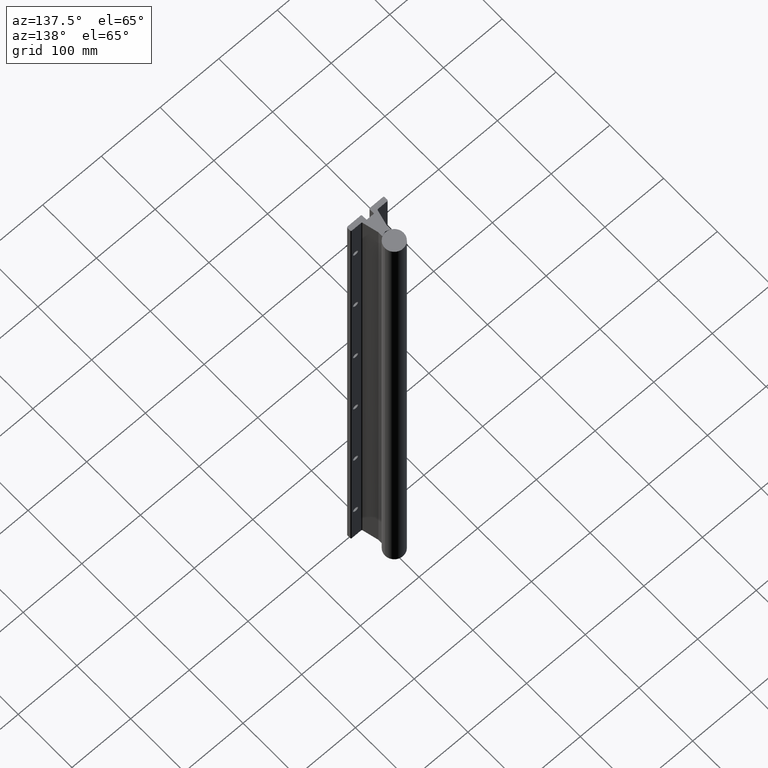
[diagram: clean part render]
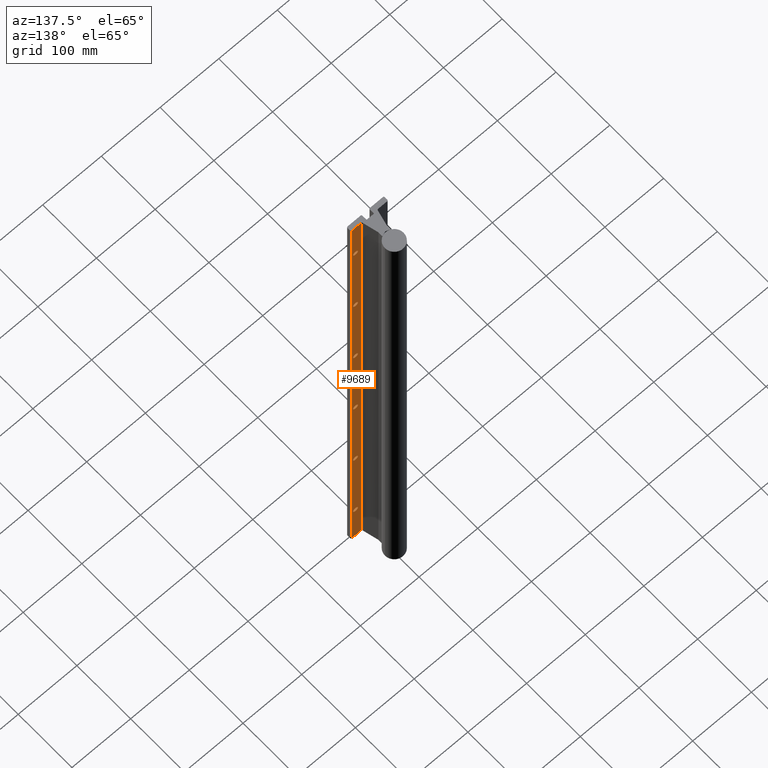
[diagram: same view with one face highlighted and labeled with its STEP entity id]
A machine part, auxiliary view. The second image highlights one B-rep face of the part: STEP entity #9689.
In plain terms, the highlighted planar face has unit normal (0, 1, 0).
Its self-contained STEP definition (entity closure, byte-faithful):
#9 = CIRCLE ( 'NONE', #5520, 0.1720000000000000973 ) ;
#99 = CIRCLE ( 'NONE', #13261, 0.1720000000000000973 ) ;
#114 = CARTESIAN_POINT ( 'NONE',  ( 0.9375000000000000000, 0.3125000000000000000, -27.00000000000000355 ) ) ;
#174 = EDGE_CURVE ( 'NONE', #2960, #9731, #13385, .T. ) ;
#355 = FACE_BOUND ( 'NONE', #3713, .T. ) ;
#471 = DIRECTION ( 'NONE',  ( 1.000000000000000000, -4.418013279749010767E-16, 0.000000000000000000 ) ) ;
#488 = DIRECTION ( 'NONE',  ( -1.000000000000000000, 4.418013279749010767E-16, 0.000000000000000000 ) ) ;
#536 = DIRECTION ( 'NONE',  ( 0.000000000000000000, 0.000000000000000000, 1.000000000000000000 ) ) ;
#846 = ORIENTED_EDGE ( 'NONE', *, *, #11288, .T. ) ;
#956 = EDGE_CURVE ( 'NONE', #12083, #2874, #12324, .T. ) ;
#1210 = EDGE_LOOP ( 'NONE', ( #6468, #10096 ) ) ;
#1233 = DIRECTION ( 'NONE',  ( -4.418013279749010274E-16, -1.000000000000000000, 0.000000000000000000 ) ) ;
#1277 = VERTEX_POINT ( 'NONE', #6699 ) ;
#1302 = VECTOR ( 'NONE', #13465, 39.37007874015748143 ) ;
#1322 = CIRCLE ( 'NONE', #9092, 0.1720000000000000973 ) ;
#1335 = CIRCLE ( 'NONE', #3119, 0.1720000000000000973 ) ;
#1359 = VERTEX_POINT ( 'NONE', #4377 ) ;
#1367 = CARTESIAN_POINT ( 'NONE',  ( 0.9375000000000000000, 0.3125000000000000000, -21.17200000000000415 ) ) ;
#1396 = DIRECTION ( 'NONE',  ( -4.418013279749010274E-16, -1.000000000000000000, 0.000000000000000000 ) ) ;
#1517 = DIRECTION ( 'NONE',  ( -1.000000000000000000, 4.418013279749010767E-16, 0.000000000000000000 ) ) ;
#1652 = CIRCLE ( 'NONE', #10087, 0.1720000000000000973 ) ;
#1697 = ORIENTED_EDGE ( 'NONE', *, *, #956, .T. ) ;
#1725 = CARTESIAN_POINT ( 'NONE',  ( 0.5686569076000015377, 0.3125000000000003331, -38.94793013549425353 ) ) ;
#1761 = VECTOR ( 'NONE', #471, 39.37007874015748143 ) ;
#1885 = DIRECTION ( 'NONE',  ( -1.000000000000000000, 3.970709293116659488E-16, 0.000000000000000000 ) ) ;
#2142 = DIRECTION ( 'NONE',  ( -4.418013279749010274E-16, -1.000000000000000000, 0.000000000000000000 ) ) ;
#2299 = ORIENTED_EDGE ( 'NONE', *, *, #5965, .T. ) ;
#2371 = CARTESIAN_POINT ( 'NONE',  ( 0.9375000000000000000, 0.3125000000000000000, -9.172000000000002373 ) ) ;
#2517 = FACE_BOUND ( 'NONE', #7181, .T. ) ;
#2573 = LINE ( 'NONE', #11120, #13554 ) ;
#2683 = LINE ( 'NONE', #1725, #7549 ) ;
#2874 = VERTEX_POINT ( 'NONE', #11845 ) ;
#2880 = AXIS2_PLACEMENT_3D ( 'NONE', #10018, #3536, #488 ) ;
#2960 = VERTEX_POINT ( 'NONE', #7918 ) ;
#2985 = AXIS2_PLACEMENT_3D ( 'NONE', #4623, #3480, #13217 ) ;
#2997 = VERTEX_POINT ( 'NONE', #2371 ) ;
#3105 = EDGE_CURVE ( 'NONE', #2874, #12083, #6508, .T. ) ;
#3119 = AXIS2_PLACEMENT_3D ( 'NONE', #13272, #3674, #5814 ) ;
#3153 = DIRECTION ( 'NONE',  ( -4.418013279749010274E-16, -1.000000000000000000, 0.000000000000000000 ) ) ;
#3277 = VERTEX_POINT ( 'NONE', #1367 ) ;
#3340 = CARTESIAN_POINT ( 'NONE',  ( 0.9375000000000000000, 0.3125000000000000000, -9.000000000000001776 ) ) ;
#3480 = DIRECTION ( 'NONE',  ( -4.418013279749010274E-16, -1.000000000000000000, 0.000000000000000000 ) ) ;
#3536 = DIRECTION ( 'NONE',  ( 4.418013279749010767E-16, 1.000000000000000000, -0.000000000000000000 ) ) ;
#3579 = CARTESIAN_POINT ( 'NONE',  ( 0.9375000000000000000, 0.3125000000000000000, -15.17200000000000060 ) ) ;
#3674 = DIRECTION ( 'NONE',  ( -4.418013279749010274E-16, -1.000000000000000000, 0.000000000000000000 ) ) ;
#3713 = EDGE_LOOP ( 'NONE', ( #1697, #5145 ) ) ;
#3809 = DIRECTION ( 'NONE',  ( -1.000000000000000000, 3.970709293116659488E-16, 0.000000000000000000 ) ) ;
#4087 = ORIENTED_EDGE ( 'NONE', *, *, #11528, .T. ) ;
#4366 = DIRECTION ( 'NONE',  ( -4.418013279749010274E-16, -1.000000000000000000, 0.000000000000000000 ) ) ;
#4377 = CARTESIAN_POINT ( 'NONE',  ( 0.9375000000000000000, 0.3125000000000000000, -20.82800000000000651 ) ) ;
#4450 = DIRECTION ( 'NONE',  ( -1.000000000000000000, 3.970709293116659488E-16, 0.000000000000000000 ) ) ;
#4623 = CARTESIAN_POINT ( 'NONE',  ( 0.9375000000000000000, 0.3125000000000000000, -9.000000000000001776 ) ) ;
#4766 = DIRECTION ( 'NONE',  ( -1.000000000000000000, 3.970709293116659488E-16, 0.000000000000000000 ) ) ;
#4839 = CIRCLE ( 'NONE', #11970, 0.1720000000000000973 ) ;
#4855 = CARTESIAN_POINT ( 'NONE',  ( 0.9375000000000000000, 0.3125000000000000000, -21.00000000000000355 ) ) ;
#5023 = VERTEX_POINT ( 'NONE', #5463 ) ;
#5070 = EDGE_LOOP ( 'NONE', ( #10288, #6958 ) ) ;
#5145 = ORIENTED_EDGE ( 'NONE', *, *, #3105, .T. ) ;
#5278 = EDGE_LOOP ( 'NONE', ( #9044, #4087 ) ) ;
#5463 = CARTESIAN_POINT ( 'NONE',  ( 1.187000000000000277, 0.3125000000000000555, 0.000000000000000000 ) ) ;
#5520 = AXIS2_PLACEMENT_3D ( 'NONE', #4855, #5847, #6963 ) ;
#5539 = EDGE_CURVE ( 'NONE', #9731, #2960, #99, .T. ) ;
#5753 = PLANE ( 'NONE',  #2880 ) ;
#5814 = DIRECTION ( 'NONE',  ( -1.000000000000000000, 3.970709293116659488E-16, 0.000000000000000000 ) ) ;
#5820 = AXIS2_PLACEMENT_3D ( 'NONE', #9944, #1396, #3809 ) ;
#5825 = FACE_BOUND ( 'NONE', #6571, .T. ) ;
#5847 = DIRECTION ( 'NONE',  ( -4.418013279749010274E-16, -1.000000000000000000, 0.000000000000000000 ) ) ;
#5965 = EDGE_CURVE ( 'NONE', #8861, #10247, #6285, .T. ) ;
#6203 = DIRECTION ( 'NONE',  ( -1.000000000000000000, 3.970709293116659488E-16, 0.000000000000000000 ) ) ;
#6285 = CIRCLE ( 'NONE', #7869, 0.1720000000000000973 ) ;
#6288 = CARTESIAN_POINT ( 'NONE',  ( 0.9375000000000000000, 0.3125000000000000000, -8.828000000000001180 ) ) ;
#6468 = ORIENTED_EDGE ( 'NONE', *, *, #12019, .T. ) ;
#6508 = CIRCLE ( 'NONE', #11002, 0.1720000000000000973 ) ;
#6571 = EDGE_LOOP ( 'NONE', ( #7552, #2299 ) ) ;
#6663 = VERTEX_POINT ( 'NONE', #8853 ) ;
#6699 = CARTESIAN_POINT ( 'NONE',  ( 0.9375000000000000000, 0.3125000000000000000, -32.82800000000000296 ) ) ;
#6721 = FACE_BOUND ( 'NONE', #5070, .T. ) ;
#6937 = ORIENTED_EDGE ( 'NONE', *, *, #10083, .F. ) ;
#6958 = ORIENTED_EDGE ( 'NONE', *, *, #9021, .T. ) ;
#6963 = DIRECTION ( 'NONE',  ( -1.000000000000000000, 3.970709293116659488E-16, 0.000000000000000000 ) ) ;
#7069 = DIRECTION ( 'NONE',  ( -4.418013279749010274E-16, -1.000000000000000000, 0.000000000000000000 ) ) ;
#7138 = CARTESIAN_POINT ( 'NONE',  ( 0.9375000000000000000, 0.3125000000000000000, -3.000000000000000444 ) ) ;
#7181 = EDGE_LOOP ( 'NONE', ( #7763, #9008 ) ) ;
#7220 = EDGE_CURVE ( 'NONE', #3277, #1359, #7611, .T. ) ;
#7307 = EDGE_CURVE ( 'NONE', #1277, #9304, #1652, .T. ) ;
#7448 = DIRECTION ( 'NONE',  ( -1.000000000000000000, 3.970709293116659488E-16, 0.000000000000000000 ) ) ;
#7549 = VECTOR ( 'NONE', #536, 39.37007874015748143 ) ;
#7552 = ORIENTED_EDGE ( 'NONE', *, *, #11851, .T. ) ;
#7611 = CIRCLE ( 'NONE', #13018, 0.1720000000000000973 ) ;
#7762 = LINE ( 'NONE', #12121, #1761 ) ;
#7763 = ORIENTED_EDGE ( 'NONE', *, *, #174, .T. ) ;
#7781 = FACE_BOUND ( 'NONE', #5278, .T. ) ;
#7856 = CIRCLE ( 'NONE', #2985, 0.1720000000000000973 ) ;
#7857 = FACE_OUTER_BOUND ( 'NONE', #8514, .T. ) ;
#7869 = AXIS2_PLACEMENT_3D ( 'NONE', #7138, #7069, #6203 ) ;
#7918 = CARTESIAN_POINT ( 'NONE',  ( 0.9375000000000000000, 0.3125000000000000000, -27.17200000000000060 ) ) ;
#8278 = CARTESIAN_POINT ( 'NONE',  ( 0.9375000000000000000, 0.3125000000000000000, -26.82800000000000651 ) ) ;
#8451 = EDGE_CURVE ( 'NONE', #2997, #11626, #7856, .T. ) ;
#8457 = AXIS2_PLACEMENT_3D ( 'NONE', #10953, #8792, #13087 ) ;
#8514 = EDGE_LOOP ( 'NONE', ( #13696, #846, #6937, #13564 ) ) ;
#8691 = CARTESIAN_POINT ( 'NONE',  ( 0.9375000000000000000, 0.3125000000000000000, -33.17200000000000415 ) ) ;
#8792 = DIRECTION ( 'NONE',  ( -4.418013279749010274E-16, -1.000000000000000000, 0.000000000000000000 ) ) ;
#8853 = CARTESIAN_POINT ( 'NONE',  ( 0.5686569076000015377, 0.3125000000000003331, 0.000000000000000000 ) ) ;
#8861 = VERTEX_POINT ( 'NONE', #11097 ) ;
#9008 = ORIENTED_EDGE ( 'NONE', *, *, #5539, .T. ) ;
#9021 = EDGE_CURVE ( 'NONE', #11626, #2997, #4839, .T. ) ;
#9044 = ORIENTED_EDGE ( 'NONE', *, *, #7220, .T. ) ;
#9046 = VERTEX_POINT ( 'NONE', #9738 ) ;
#9092 = AXIS2_PLACEMENT_3D ( 'NONE', #12750, #1233, #4450 ) ;
#9304 = VERTEX_POINT ( 'NONE', #8691 ) ;
#9689 = ADVANCED_FACE ( 'NONE', ( #7781, #2517, #6721, #355, #12202, #5825, #7857 ), #5753, .T. ) ;
#9731 = VERTEX_POINT ( 'NONE', #8278 ) ;
#9738 = CARTESIAN_POINT ( 'NONE',  ( 0.5686569076000015377, 0.3125000000000003331, -36.00000000000000000 ) ) ;
#9814 = EDGE_CURVE ( 'NONE', #11040, #5023, #13407, .T. ) ;
#9944 = CARTESIAN_POINT ( 'NONE',  ( 0.9375000000000000000, 0.3125000000000000000, -15.00000000000000000 ) ) ;
#9994 = EDGE_CURVE ( 'NONE', #9046, #11040, #7762, .T. ) ;
#10018 = CARTESIAN_POINT ( 'NONE',  ( 1.187000000000000277, 0.3125000000000000555, -38.94793013549425353 ) ) ;
#10083 = EDGE_CURVE ( 'NONE', #5023, #6663, #2573, .T. ) ;
#10087 = AXIS2_PLACEMENT_3D ( 'NONE', #12278, #11937, #4766 ) ;
#10096 = ORIENTED_EDGE ( 'NONE', *, *, #7307, .T. ) ;
#10247 = VERTEX_POINT ( 'NONE', #12615 ) ;
#10288 = ORIENTED_EDGE ( 'NONE', *, *, #8451, .T. ) ;
#10419 = CARTESIAN_POINT ( 'NONE',  ( 1.187000000000000277, 0.3125000000000000555, -36.00000000000000000 ) ) ;
#10424 = DIRECTION ( 'NONE',  ( -4.418013279749010274E-16, -1.000000000000000000, 0.000000000000000000 ) ) ;
#10953 = CARTESIAN_POINT ( 'NONE',  ( 0.9375000000000000000, 0.3125000000000000000, -27.00000000000000355 ) ) ;
#11002 = AXIS2_PLACEMENT_3D ( 'NONE', #12265, #10424, #1885 ) ;
#11040 = VERTEX_POINT ( 'NONE', #10419 ) ;
#11097 = CARTESIAN_POINT ( 'NONE',  ( 0.9375000000000000000, 0.3125000000000000000, -2.827999999999999847 ) ) ;
#11120 = CARTESIAN_POINT ( 'NONE',  ( 1.187000000000000277, 0.3125000000000000555, 0.000000000000000000 ) ) ;
#11288 = EDGE_CURVE ( 'NONE', #9046, #6663, #2683, .T. ) ;
#11528 = EDGE_CURVE ( 'NONE', #1359, #3277, #9, .T. ) ;
#11626 = VERTEX_POINT ( 'NONE', #6288 ) ;
#11735 = DIRECTION ( 'NONE',  ( -1.000000000000000000, 3.970709293116659488E-16, 0.000000000000000000 ) ) ;
#11845 = CARTESIAN_POINT ( 'NONE',  ( 0.9375000000000000000, 0.3125000000000000000, -14.82800000000000118 ) ) ;
#11851 = EDGE_CURVE ( 'NONE', #10247, #8861, #1335, .T. ) ;
#11937 = DIRECTION ( 'NONE',  ( -4.418013279749010274E-16, -1.000000000000000000, 0.000000000000000000 ) ) ;
#11970 = AXIS2_PLACEMENT_3D ( 'NONE', #3340, #3153, #7448 ) ;
#12019 = EDGE_CURVE ( 'NONE', #9304, #1277, #1322, .T. ) ;
#12083 = VERTEX_POINT ( 'NONE', #3579 ) ;
#12121 = CARTESIAN_POINT ( 'NONE',  ( 1.187000000000000277, 0.3125000000000000555, -36.00000000000000000 ) ) ;
#12202 = FACE_BOUND ( 'NONE', #1210, .T. ) ;
#12265 = CARTESIAN_POINT ( 'NONE',  ( 0.9375000000000000000, 0.3125000000000000000, -15.00000000000000000 ) ) ;
#12278 = CARTESIAN_POINT ( 'NONE',  ( 0.9375000000000000000, 0.3125000000000000000, -33.00000000000000000 ) ) ;
#12324 = CIRCLE ( 'NONE', #5820, 0.1720000000000000973 ) ;
#12615 = CARTESIAN_POINT ( 'NONE',  ( 0.9375000000000000000, 0.3125000000000000000, -3.172000000000000597 ) ) ;
#12727 = CARTESIAN_POINT ( 'NONE',  ( 0.9375000000000000000, 0.3125000000000000000, -21.00000000000000355 ) ) ;
#12750 = CARTESIAN_POINT ( 'NONE',  ( 0.9375000000000000000, 0.3125000000000000000, -33.00000000000000000 ) ) ;
#13018 = AXIS2_PLACEMENT_3D ( 'NONE', #12727, #4366, #11735 ) ;
#13087 = DIRECTION ( 'NONE',  ( -1.000000000000000000, 3.970709293116659488E-16, 0.000000000000000000 ) ) ;
#13217 = DIRECTION ( 'NONE',  ( -1.000000000000000000, 3.970709293116659488E-16, 0.000000000000000000 ) ) ;
#13261 = AXIS2_PLACEMENT_3D ( 'NONE', #114, #2142, #13784 ) ;
#13272 = CARTESIAN_POINT ( 'NONE',  ( 0.9375000000000000000, 0.3125000000000000000, -3.000000000000000444 ) ) ;
#13385 = CIRCLE ( 'NONE', #8457, 0.1720000000000000973 ) ;
#13407 = LINE ( 'NONE', #13590, #1302 ) ;
#13465 = DIRECTION ( 'NONE',  ( 0.000000000000000000, 0.000000000000000000, 1.000000000000000000 ) ) ;
#13554 = VECTOR ( 'NONE', #1517, 39.37007874015748143 ) ;
#13564 = ORIENTED_EDGE ( 'NONE', *, *, #9814, .F. ) ;
#13590 = CARTESIAN_POINT ( 'NONE',  ( 1.187000000000000277, 0.3125000000000000555, -38.94793013549425353 ) ) ;
#13696 = ORIENTED_EDGE ( 'NONE', *, *, #9994, .F. ) ;
#13784 = DIRECTION ( 'NONE',  ( -1.000000000000000000, 3.970709293116659488E-16, 0.000000000000000000 ) ) ;